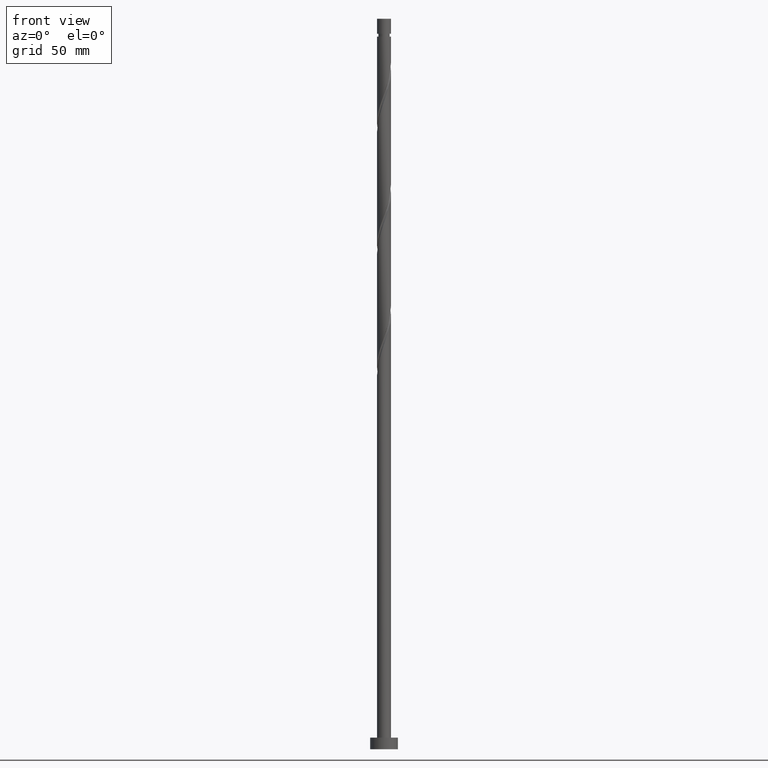
[diagram: clean part render]
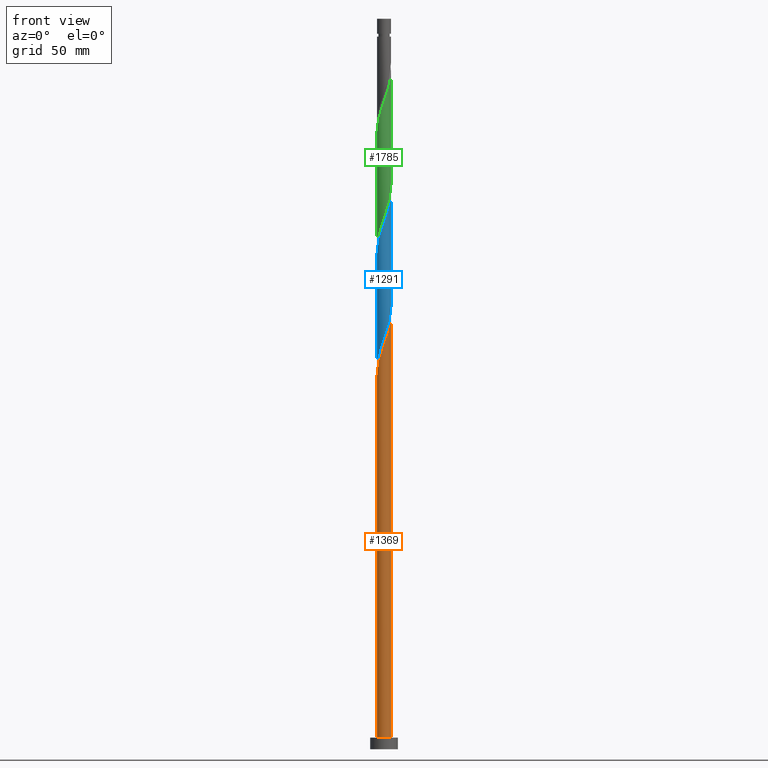
[diagram: same view with three faces highlighted in distinct colors, each labeled with its STEP entity id]
A machine part, front view with three faces highlighted in distinct colors.
Their STEP definitions:

[orange] entity #1369 — the highlighted cylindrical surface (edge-blend (fillet) strip) has radius 3 mm, axis along (-0, -0, -1).
#17 = EDGE_LOOP ( 'NONE', ( #117, #1162, #1628, #1752 ) ) ;
#66 = CARTESIAN_POINT ( 'NONE',  ( -2.185491920847153935, -2.082758216016311614, 167.6483618803024456 ) ) ;
#84 = CARTESIAN_POINT ( 'NONE',  ( -1.926365846447887664, -2.299807519258761701, 168.5858618803024171 ) ) ;
#95 = LINE ( 'NONE', #1820, #662 ) ;
#112 = CARTESIAN_POINT ( 'NONE',  ( 3.000000000000005329, 1.074655693549865574E-15, 187.5363448023963713 ) ) ;
#117 = ORIENTED_EDGE ( 'NONE', *, *, #494, .F. ) ;
#134 = VERTEX_POINT ( 'NONE', #1786 ) ;
#206 = CARTESIAN_POINT ( 'NONE',  ( 2.299807519258761701, -1.926365846447887664, 181.7108618803024171 ) ) ;
#242 = CARTESIAN_POINT ( 'NONE',  ( -3.000000000000002665, -0.3015113445777758971, 162.1246158813600573 ) ) ;
#345 = CYLINDRICAL_SURFACE ( 'NONE', #907, 3.000000000000000444 ) ;
#366 = CARTESIAN_POINT ( 'NONE',  ( -2.940000000000003944, -0.5969924622639746215, 162.9608618803023887 ) ) ;
#374 = CARTESIAN_POINT ( 'NONE',  ( -0.4101078809741727782, -2.990997868343358235, 173.2733618803023887 ) ) ;
#487 = CARTESIAN_POINT ( 'NONE',  ( -3.000000000000000444, 0.000000000000000000, 5.000000000000000000 ) ) ;
#494 = EDGE_CURVE ( 'NONE', #653, #867, #95, .T. ) ;
#499 = CARTESIAN_POINT ( 'NONE',  ( -2.733444741546705803, -1.236236160654868188, 164.8358618803023887 ) ) ;
#527 = CARTESIAN_POINT ( 'NONE',  ( 1.544221415739434722, -2.594154378914896864, 178.8983618803024456 ) ) ;
#539 = VERTEX_POINT ( 'NONE', #487 ) ;
#571 = CARTESIAN_POINT ( 'NONE',  ( 0.000000000000000000, 0.000000000000000000, 5.000000000000000000 ) ) ;
#575 = CARTESIAN_POINT ( 'NONE',  ( -3.000000000000000444, 0.000000000000000000, 315.0000000000000000 ) ) ;
#653 = VERTEX_POINT ( 'NONE', #691 ) ;
#662 = VECTOR ( 'NONE', #792, 1000.000000000000000 ) ;
#686 = CARTESIAN_POINT ( 'NONE',  ( 2.082758216016311614, -2.185491920847153935, 180.7733618803023887 ) ) ;
#691 = CARTESIAN_POINT ( 'NONE',  ( 3.000000000000005329, 1.074655693549865574E-15, 187.5363448023963713 ) ) ;
#792 = DIRECTION ( 'NONE',  ( -0.000000000000000000, -0.000000000000000000, -1.000000000000000000 ) ) ;
#803 = CARTESIAN_POINT ( 'NONE',  ( 2.990997868343357791, -0.4101078809741728892, 186.3983618803024171 ) ) ;
#824 = CARTESIAN_POINT ( 'NONE',  ( 0.9282509055703016543, -2.872735104178516075, 177.0233618803024740 ) ) ;
#840 = CARTESIAN_POINT ( 'NONE',  ( -1.366312515670596417, -2.670803270464134016, 170.4608618803024171 ) ) ;
#867 = VERTEX_POINT ( 'NONE', #903 ) ;
#903 = CARTESIAN_POINT ( 'NONE',  ( 3.000000000000000444, 3.673940397442060361E-16, 5.000000000000000000 ) ) ;
#907 = AXIS2_PLACEMENT_3D ( 'NONE', #1236, #1823, #1042 ) ;
#966 = CARTESIAN_POINT ( 'NONE',  ( -0.7377465701333721926, -2.907873793385206351, 172.3358618803023603 ) ) ;
#982 = EDGE_CURVE ( 'NONE', #134, #539, #1895, .T. ) ;
#984 = CARTESIAN_POINT ( 'NONE',  ( -1.065385259292571662, -2.824749718427057577, 171.3983618803024456 ) ) ;
#1042 = DIRECTION ( 'NONE',  ( -1.000000000000000000, 0.000000000000000000, 0.000000000000000000 ) ) ;
#1054 =( BOUNDED_CURVE ( )  B_SPLINE_CURVE ( 2, ( #1128, #242, #366, #1255, #499, #1394, #1410, #66, #84, #1111, #840, #984, #966, #374, #1418, #1841, #1549, #824, #1403, #527, #1704, #686, #206, #1270, #1860, #1712, #1674, #803, #1387, #1428, #112 ),
 .UNSPECIFIED., .F., .T. ) 
 B_SPLINE_CURVE_WITH_KNOTS ( ( 3, 2, 2, 2, 2, 2, 2, 2, 2, 2, 2, 2, 2, 2, 2, 3 ),
 ( 0.05453034012992235419, 0.06250000000000000000, 0.07142857142857139685, 0.08035714285714290472, 0.08928571428571430157, 0.09821428571428569843, 0.1071428571428570953, 0.1160714285714286031, 0.1250000000000000000, 0.1339285714285713969, 0.1428571428571429047, 0.1517857142857143016, 0.1607142857142856984, 0.1696428571428570953, 0.1785714285714286031, 0.1795303401299222223 ),
 .UNSPECIFIED. ) 
 CURVE ( )  GEOMETRIC_REPRESENTATION_ITEM ( )  RATIONAL_B_SPLINE_CURVE ( ( 0.9079949616362184006, 0.9039886423360818934, 0.9090909090909486956, 0.9033747362666234570, 0.9090909090909486956, 0.9033747362666234570, 0.9090909090909486956, 0.9033747362666234570, 0.9090909090909486956, 0.9033747362666234570, 0.9090909090909486956, 0.9033747362666234570, 0.9090909090909486956, 0.9033747362666234570, 0.9090909090909486956, 0.9033747362666234570, 0.9090909090909486956, 0.9033747362666234570, 0.9090909090909486956, 0.9033747362666234570, 0.9090909090909486956, 0.9033747362666234570, 0.9090909090909486956, 0.9033747362666234570, 0.9090909090909486956, 0.9033747362666234570, 0.9090909090909486956, 0.9033747362666234570, 0.9090909090909486956, 0.9084770030214903702, 0.9079949616362186227 ) ) 
 REPRESENTATION_ITEM ( '' )  );
#1111 = CARTESIAN_POINT ( 'NONE',  ( -1.667239772048622060, -2.516856822501212232, 169.5233618803023887 ) ) ;
#1128 = CARTESIAN_POINT ( 'NONE',  ( -3.000000000000005329, -1.432874258066487300E-15, 161.2863448023963713 ) ) ;
#1136 = EDGE_CURVE ( 'NONE', #539, #867, #1186, .T. ) ;
#1162 = ORIENTED_EDGE ( 'NONE', *, *, #1684, .F. ) ;
#1186 = CIRCLE ( 'NONE', #1766, 3.000000000000000444 ) ;
#1236 = CARTESIAN_POINT ( 'NONE',  ( 0.000000000000000000, 0.000000000000000000, 315.0000000000000000 ) ) ;
#1255 = CARTESIAN_POINT ( 'NONE',  ( -2.872735104178516075, -0.9282509055703017653, 163.8983618803024456 ) ) ;
#1270 = CARTESIAN_POINT ( 'NONE',  ( 2.516856822501212232, -1.667239772048622504, 182.6483618803024456 ) ) ;
#1330 = DIRECTION ( 'NONE',  ( 0.000000000000000000, 0.000000000000000000, 1.000000000000000000 ) ) ;
#1369 = ADVANCED_FACE ( 'NONE', ( #1664 ), #345, .T. ) ;
#1387 = CARTESIAN_POINT ( 'NONE',  ( 2.999131382082425468, -0.07218693100826267806, 187.3358618803023887 ) ) ;
#1394 = CARTESIAN_POINT ( 'NONE',  ( -2.594154378914896864, -1.544221415739434944, 165.7733618803023887 ) ) ;
#1403 = CARTESIAN_POINT ( 'NONE',  ( 1.236236160654867966, -2.733444741546705803, 177.9608618803024171 ) ) ;
#1410 = CARTESIAN_POINT ( 'NONE',  ( -2.389823149881024289, -1.813489815877873168, 166.7108618803023887 ) ) ;
#1418 = CARTESIAN_POINT ( 'NONE',  ( -0.07218693100826246989, -2.999131382082425468, 174.2108618803024171 ) ) ;
#1428 = CARTESIAN_POINT ( 'NONE',  ( 3.000000000000004441, -0.03609869149916513503, 187.4359821141712530 ) ) ;
#1549 = CARTESIAN_POINT ( 'NONE',  ( 0.5969924622639746215, -2.940000000000003944, 176.0858618803023887 ) ) ;
#1579 = VECTOR ( 'NONE', #1746, 1000.000000000000000 ) ;
#1628 = ORIENTED_EDGE ( 'NONE', *, *, #982, .T. ) ;
#1664 = FACE_OUTER_BOUND ( 'NONE', #17, .T. ) ;
#1674 = CARTESIAN_POINT ( 'NONE',  ( 2.907873793385206351, -0.7377465701333721926, 185.4608618803023603 ) ) ;
#1684 = EDGE_CURVE ( 'NONE', #134, #653, #1054, .T. ) ;
#1704 = CARTESIAN_POINT ( 'NONE',  ( 1.813489815877873168, -2.389823149881024733, 179.8358618803024740 ) ) ;
#1712 = CARTESIAN_POINT ( 'NONE',  ( 2.824749718427057577, -1.065385259292571662, 184.5233618803024171 ) ) ;
#1746 = DIRECTION ( 'NONE',  ( -0.000000000000000000, -0.000000000000000000, -1.000000000000000000 ) ) ;
#1752 = ORIENTED_EDGE ( 'NONE', *, *, #1136, .T. ) ;
#1766 = AXIS2_PLACEMENT_3D ( 'NONE', #571, #1330, #1900 ) ;
#1786 = CARTESIAN_POINT ( 'NONE',  ( -3.000000000000005329, -1.432874258066487300E-15, 161.2863448023963997 ) ) ;
#1820 = CARTESIAN_POINT ( 'NONE',  ( 3.000000000000000444, 3.673940397442060361E-16, 315.0000000000000000 ) ) ;
#1823 = DIRECTION ( 'NONE',  ( -0.000000000000000000, -0.000000000000000000, -1.000000000000000000 ) ) ;
#1841 = CARTESIAN_POINT ( 'NONE',  ( 0.2657340189576475331, -3.007264895821492701, 175.1483618803024171 ) ) ;
#1860 = CARTESIAN_POINT ( 'NONE',  ( 2.670803270464134016, -1.366312515670596861, 183.5858618803023887 ) ) ;
#1895 = LINE ( 'NONE', #575, #1579 ) ;
#1900 = DIRECTION ( 'NONE',  ( 1.000000000000000000, 0.000000000000000000, 0.000000000000000000 ) ) ;

[blue] entity #1291 — the highlighted cylindrical surface (edge-blend (fillet) strip) has radius 3 mm, axis along (-0, -0, -1).
#43 = CYLINDRICAL_SURFACE ( 'NONE', #316, 3.000000000000000444 ) ;
#51 =( BOUNDED_CURVE ( )  B_SPLINE_CURVE ( 2, ( #1012, #1757, #1738, #142, #434, #1173, #743, #1046, #1029, #1592, #875, #593, #1625, #1616, #895, #152, #1306, #1334, #604, #1193, #1778, #456, #109, #304, #708, #415, #120, #1293, #1882, #563, #266 ),
 .UNSPECIFIED., .F., .T. ) 
 B_SPLINE_CURVE_WITH_KNOTS ( ( 3, 2, 2, 2, 2, 2, 2, 2, 2, 2, 2, 2, 2, 2, 2, 3 ),
 ( 0.3045303401299221391, 0.3125000000000000000, 0.3214285714285713969, 0.3303571428571429047, 0.3392857142857143016, 0.3482142857142856984, 0.3571428571428570953, 0.3660714285714286031, 0.3750000000000000000, 0.3839285714285713969, 0.3928571428571429047, 0.4017857142857143016, 0.4107142857142856984, 0.4196428571428570953, 0.4285714285714286031, 0.4295303401299221946 ),
 .UNSPECIFIED. ) 
 CURVE ( )  GEOMETRIC_REPRESENTATION_ITEM ( )  RATIONAL_B_SPLINE_CURVE ( ( 0.9079949616362186227, 0.9039886423360817824, 0.9090909090909486956, 0.9033747362666234570, 0.9090909090909486956, 0.9033747362666234570, 0.9090909090909486956, 0.9033747362666234570, 0.9090909090909486956, 0.9033747362666234570, 0.9090909090909486956, 0.9033747362666234570, 0.9090909090909486956, 0.9033747362666234570, 0.9090909090909486956, 0.9033747362666234570, 0.9090909090909486956, 0.9033747362666234570, 0.9090909090909486956, 0.9033747362666234570, 0.9090909090909486956, 0.9033747362666234570, 0.9090909090909486956, 0.9033747362666234570, 0.9090909090909486956, 0.9033747362666234570, 0.9090909090909486956, 0.9033747362666234570, 0.9090909090909486956, 0.9084770030214903702, 0.9079949616362186227 ) ) 
 REPRESENTATION_ITEM ( '' )  );
#103 = CARTESIAN_POINT ( 'NONE',  ( 2.999999999999999112, -2.597084592745524230E-15, 190.8853789582084062 ) ) ;
#109 = CARTESIAN_POINT ( 'NONE',  ( 2.299807519258761701, -1.926365846447887664, 234.2108618803024171 ) ) ;
#120 = CARTESIAN_POINT ( 'NONE',  ( 2.907873793385206351, -0.7377465701333721926, 237.9608618803023887 ) ) ;
#123 = CARTESIAN_POINT ( 'NONE',  ( 0.4101078809741707243, -2.990997868343353350, 178.8983618803023887 ) ) ;
#136 = CARTESIAN_POINT ( 'NONE',  ( -1.236236160654866856, -2.733444741546700030, 174.2108618803023603 ) ) ;
#142 = CARTESIAN_POINT ( 'NONE',  ( -2.872735104178516075, -0.9282509055703017653, 216.3983618803024456 ) ) ;
#152 = CARTESIAN_POINT ( 'NONE',  ( 0.2657340189576475331, -3.007264895821492701, 227.6483618803024456 ) ) ;
#266 = CARTESIAN_POINT ( 'NONE',  ( 3.000000000000005329, 1.074655693549865574E-15, 240.0363448023963429 ) ) ;
#269 = CARTESIAN_POINT ( 'NONE',  ( 1.667239772048618729, -2.516856822501207347, 182.6483618803023887 ) ) ;
#304 = CARTESIAN_POINT ( 'NONE',  ( 2.516856822501212232, -1.667239772048622504, 235.1483618803023887 ) ) ;
#311 = EDGE_CURVE ( 'NONE', #1632, #403, #1697, .T. ) ;
#316 = AXIS2_PLACEMENT_3D ( 'NONE', #1806, #1519, #1207 ) ;
#403 = VERTEX_POINT ( 'NONE', #1103 ) ;
#415 = CARTESIAN_POINT ( 'NONE',  ( 2.824749718427057577, -1.065385259292571662, 237.0233618803024171 ) ) ;
#434 = CARTESIAN_POINT ( 'NONE',  ( -2.733444741546705803, -1.236236160654868188, 217.3358618803024456 ) ) ;
#456 = CARTESIAN_POINT ( 'NONE',  ( 2.082758216016311614, -2.185491920847153935, 233.2733618803024171 ) ) ;
#470 = ORIENTED_EDGE ( 'NONE', *, *, #939, .F. ) ;
#486 = ORIENTED_EDGE ( 'NONE', *, *, #1883, .F. ) ;
#533 =( BOUNDED_CURVE ( )  B_SPLINE_CURVE ( 2, ( #103, #1868, #1285, #857, #1147, #1023, #1438, #1167, #1885, #269, #994, #722, #869, #123, #1897, #889, #1309, #1456, #136, #733, #1465, #1319, #1907, #586, #1175, #1759, #1032, #1611, #746, #546, #1139 ),
 .UNSPECIFIED., .F., .T. ) 
 B_SPLINE_CURVE_WITH_KNOTS ( ( 3, 2, 2, 2, 2, 2, 2, 2, 2, 2, 2, 2, 2, 2, 2, 3 ),
 ( 0.8045303401299223056, 0.8125000000000000000, 0.8214285714285713969, 0.8303571428571429047, 0.8392857142857143016, 0.8482142857142856984, 0.8571428571428570953, 0.8660714285714286031, 0.8750000000000000000, 0.8839285714285713969, 0.8928571428571429047, 0.9017857142857143016, 0.9107142857142856984, 0.9196428571428570953, 0.9285714285714286031, 0.9295303401299221946 ),
 .UNSPECIFIED. ) 
 CURVE ( )  GEOMETRIC_REPRESENTATION_ITEM ( )  RATIONAL_B_SPLINE_CURVE ( ( 0.9079949616362125164, 0.9039886423360760093, 0.9090909090909428114, 0.9033747362666175729, 0.9090909090909428114, 0.9033747362666175729, 0.9090909090909428114, 0.9033747362666175729, 0.9090909090909428114, 0.9033747362666175729, 0.9090909090909428114, 0.9033747362666175729, 0.9090909090909428114, 0.9033747362666175729, 0.9090909090909428114, 0.9033747362666175729, 0.9090909090909428114, 0.9033747362666175729, 0.9090909090909428114, 0.9033747362666175729, 0.9090909090909428114, 0.9033747362666175729, 0.9090909090909428114, 0.9033747362666175729, 0.9090909090909428114, 0.9033747362666175729, 0.9090909090909428114, 0.9033747362666175729, 0.9090909090909428114, 0.9084770030214844860, 0.9079949616362127385 ) ) 
 REPRESENTATION_ITEM ( '' )  );
#546 = CARTESIAN_POINT ( 'NONE',  ( -2.999999999999998668, -0.03609869149916502401, 164.7357416464334676 ) ) ;
#563 = CARTESIAN_POINT ( 'NONE',  ( 3.000000000000004441, -0.03609869149916618281, 239.9359821141712530 ) ) ;
#586 = CARTESIAN_POINT ( 'NONE',  ( -2.516856822501207347, -1.667239772048618729, 169.5233618803023603 ) ) ;
#593 = CARTESIAN_POINT ( 'NONE',  ( -1.065385259292571662, -2.824749718427057577, 223.8983618803024171 ) ) ;
#604 = CARTESIAN_POINT ( 'NONE',  ( 1.236236160654867966, -2.733444741546705803, 230.4608618803024171 ) ) ;
#643 = VERTEX_POINT ( 'NONE', #1494 ) ;
#695 = CARTESIAN_POINT ( 'NONE',  ( -3.000000000000005773, 6.921827470607638618E-15, 213.7863448023963429 ) ) ;
#708 = CARTESIAN_POINT ( 'NONE',  ( 2.670803270464134016, -1.366312515670596861, 236.0858618803024171 ) ) ;
#722 = CARTESIAN_POINT ( 'NONE',  ( 1.065385259292568554, -2.824749718427051803, 180.7733618803023603 ) ) ;
#733 = CARTESIAN_POINT ( 'NONE',  ( -1.544221415739433390, -2.594154378914891979, 173.2733618803023603 ) ) ;
#743 = CARTESIAN_POINT ( 'NONE',  ( -2.389823149881024289, -1.813489815877873168, 219.2108618803023603 ) ) ;
#746 = CARTESIAN_POINT ( 'NONE',  ( -2.999131382082419695, -0.07218693100826148457, 164.8358618803023887 ) ) ;
#833 = CARTESIAN_POINT ( 'NONE',  ( -3.000000000000000444, 0.000000000000000000, 315.0000000000000000 ) ) ;
#857 = CARTESIAN_POINT ( 'NONE',  ( 2.872735104178510745, -0.9282509055703014322, 188.2733618803023319 ) ) ;
#869 = CARTESIAN_POINT ( 'NONE',  ( 0.7377465701333697501, -2.907873793385202355, 179.8358618803023887 ) ) ;
#875 = CARTESIAN_POINT ( 'NONE',  ( -1.366312515670596417, -2.670803270464134016, 222.9608618803024171 ) ) ;
#889 = CARTESIAN_POINT ( 'NONE',  ( -0.2657340189576483658, -3.007264895821487372, 177.0233618803024171 ) ) ;
#895 = CARTESIAN_POINT ( 'NONE',  ( -0.07218693100826246989, -2.999131382082425468, 226.7108618803024171 ) ) ;
#939 = EDGE_CURVE ( 'NONE', #1632, #1346, #51, .T. ) ;
#958 = VECTOR ( 'NONE', #1706, 1000.000000000000000 ) ;
#994 = CARTESIAN_POINT ( 'NONE',  ( 1.366312515670593308, -2.670803270464130019, 181.7108618803023887 ) ) ;
#1012 = CARTESIAN_POINT ( 'NONE',  ( -3.000000000000005773, 6.921827470607638618E-15, 213.7863448023963429 ) ) ;
#1023 = CARTESIAN_POINT ( 'NONE',  ( 2.594154378914891534, -1.544221415739433390, 186.3983618803023887 ) ) ;
#1029 = CARTESIAN_POINT ( 'NONE',  ( -1.926365846447887664, -2.299807519258761701, 221.0858618803024171 ) ) ;
#1032 = CARTESIAN_POINT ( 'NONE',  ( -2.907873793385202799, -0.7377465701333697501, 166.7108618803023887 ) ) ;
#1035 = ORIENTED_EDGE ( 'NONE', *, *, #1679, .F. ) ;
#1046 = CARTESIAN_POINT ( 'NONE',  ( -2.185491920847153935, -2.082758216016311614, 220.1483618803024456 ) ) ;
#1103 = CARTESIAN_POINT ( 'NONE',  ( -2.999999999999999112, 1.054879043633850358E-14, 164.6353789582084062 ) ) ;
#1139 = CARTESIAN_POINT ( 'NONE',  ( -2.999999999999999112, 1.054879043633850201E-14, 164.6353789582084062 ) ) ;
#1147 = CARTESIAN_POINT ( 'NONE',  ( 2.733444741546700030, -1.236236160654866856, 187.3358618803023603 ) ) ;
#1167 = CARTESIAN_POINT ( 'NONE',  ( 2.185491920847150382, -2.082758216016309838, 184.5233618803023603 ) ) ;
#1173 = CARTESIAN_POINT ( 'NONE',  ( -2.594154378914896864, -1.544221415739434944, 218.2733618803024171 ) ) ;
#1175 = CARTESIAN_POINT ( 'NONE',  ( -2.670803270464130019, -1.366312515670593308, 168.5858618803024171 ) ) ;
#1193 = CARTESIAN_POINT ( 'NONE',  ( 1.544221415739434722, -2.594154378914896864, 231.3983618803025024 ) ) ;
#1207 = DIRECTION ( 'NONE',  ( -1.000000000000000000, 0.000000000000000000, 0.000000000000000000 ) ) ;
#1277 = LINE ( 'NONE', #1851, #1890 ) ;
#1285 = CARTESIAN_POINT ( 'NONE',  ( 2.939999999999999503, -0.5969924622639747325, 189.2108618803023603 ) ) ;
#1291 = ADVANCED_FACE ( 'NONE', ( #1378 ), #43, .T. ) ;
#1293 = CARTESIAN_POINT ( 'NONE',  ( 2.990997868343357791, -0.4101078809741728892, 238.8983618803024456 ) ) ;
#1306 = CARTESIAN_POINT ( 'NONE',  ( 0.5969924622639746215, -2.940000000000003944, 228.5858618803023887 ) ) ;
#1309 = CARTESIAN_POINT ( 'NONE',  ( -0.5969924622639745104, -2.939999999999999503, 176.0858618803023603 ) ) ;
#1319 = CARTESIAN_POINT ( 'NONE',  ( -2.082758216016309838, -2.185491920847150382, 171.3983618803023887 ) ) ;
#1334 = CARTESIAN_POINT ( 'NONE',  ( 0.9282509055703016543, -2.872735104178516075, 229.5233618803024456 ) ) ;
#1338 = ORIENTED_EDGE ( 'NONE', *, *, #311, .T. ) ;
#1346 = VERTEX_POINT ( 'NONE', #1510 ) ;
#1378 = FACE_OUTER_BOUND ( 'NONE', #1846, .T. ) ;
#1438 = CARTESIAN_POINT ( 'NONE',  ( 2.389823149881020292, -1.813489815877871614, 185.4608618803023319 ) ) ;
#1456 = CARTESIAN_POINT ( 'NONE',  ( -0.9282509055703012102, -2.872735104178510745, 175.1483618803023887 ) ) ;
#1465 = CARTESIAN_POINT ( 'NONE',  ( -1.813489815877871614, -2.389823149881020292, 172.3358618803023035 ) ) ;
#1494 = CARTESIAN_POINT ( 'NONE',  ( 2.999999999999999112, -2.597084592745524230E-15, 190.8853789582084062 ) ) ;
#1510 = CARTESIAN_POINT ( 'NONE',  ( 3.000000000000005329, 1.074655693549865574E-15, 240.0363448023963429 ) ) ;
#1519 = DIRECTION ( 'NONE',  ( -0.000000000000000000, -0.000000000000000000, -1.000000000000000000 ) ) ;
#1566 = DIRECTION ( 'NONE',  ( -0.000000000000000000, -0.000000000000000000, -1.000000000000000000 ) ) ;
#1592 = CARTESIAN_POINT ( 'NONE',  ( -1.667239772048622060, -2.516856822501212232, 222.0233618803024171 ) ) ;
#1611 = CARTESIAN_POINT ( 'NONE',  ( -2.990997868343353350, -0.4101078809741708908, 165.7733618803023603 ) ) ;
#1616 = CARTESIAN_POINT ( 'NONE',  ( -0.4101078809741727782, -2.990997868343358235, 225.7733618803024740 ) ) ;
#1625 = CARTESIAN_POINT ( 'NONE',  ( -0.7377465701333721926, -2.907873793385206351, 224.8358618803024456 ) ) ;
#1632 = VERTEX_POINT ( 'NONE', #695 ) ;
#1679 = EDGE_CURVE ( 'NONE', #1346, #643, #1277, .T. ) ;
#1697 = LINE ( 'NONE', #833, #958 ) ;
#1706 = DIRECTION ( 'NONE',  ( -0.000000000000000000, -0.000000000000000000, -1.000000000000000000 ) ) ;
#1738 = CARTESIAN_POINT ( 'NONE',  ( -2.940000000000003944, -0.5969924622639746215, 215.4608618803024740 ) ) ;
#1757 = CARTESIAN_POINT ( 'NONE',  ( -3.000000000000003997, -0.3015113445777677925, 214.6246158813599436 ) ) ;
#1759 = CARTESIAN_POINT ( 'NONE',  ( -2.824749718427051803, -1.065385259292568554, 167.6483618803023887 ) ) ;
#1778 = CARTESIAN_POINT ( 'NONE',  ( 1.813489815877873168, -2.389823149881024733, 232.3358618803023887 ) ) ;
#1806 = CARTESIAN_POINT ( 'NONE',  ( 0.000000000000000000, 0.000000000000000000, 315.0000000000000000 ) ) ;
#1846 = EDGE_LOOP ( 'NONE', ( #1035, #470, #1338, #486 ) ) ;
#1851 = CARTESIAN_POINT ( 'NONE',  ( 3.000000000000000444, 3.673940397442060361E-16, 315.0000000000000000 ) ) ;
#1868 = CARTESIAN_POINT ( 'NONE',  ( 2.999999999999997335, -0.3015113445777746759, 190.0471078792448338 ) ) ;
#1882 = CARTESIAN_POINT ( 'NONE',  ( 2.999131382082425468, -0.07218693100826267806, 239.8358618803023603 ) ) ;
#1883 = EDGE_CURVE ( 'NONE', #643, #403, #533, .T. ) ;
#1885 = CARTESIAN_POINT ( 'NONE',  ( 1.926365846447884111, -2.299807519258759037, 183.5858618803023887 ) ) ;
#1890 = VECTOR ( 'NONE', #1566, 1000.000000000000000 ) ;
#1897 = CARTESIAN_POINT ( 'NONE',  ( 0.07218693100826124864, -2.999131382082419695, 177.9608618803023887 ) ) ;
#1907 = CARTESIAN_POINT ( 'NONE',  ( -2.299807519258758592, -1.926365846447884111, 170.4608618803023887 ) ) ;

[green] entity #1785 — the highlighted cylindrical surface (edge-blend (fillet) strip) has radius 3 mm, axis along (-0, -0, -1).
#7 = CARTESIAN_POINT ( 'NONE',  ( 2.185491920847150382, -2.082758216016309838, 237.0233618803023887 ) ) ;
#29 = CARTESIAN_POINT ( 'NONE',  ( 0.7377465701333697501, -2.907873793385202355, 232.3358618803023319 ) ) ;
#44 = CARTESIAN_POINT ( 'NONE',  ( -1.366312515670596417, -2.670803270464134016, 275.4608618803025024 ) ) ;
#47 = EDGE_CURVE ( 'NONE', #1655, #476, #1208, .T. ) ;
#54 = CARTESIAN_POINT ( 'NONE',  ( 1.813489815877873168, -2.389823149881024733, 284.8358618803023887 ) ) ;
#68 = CARTESIAN_POINT ( 'NONE',  ( -1.667239772048622060, -2.516856822501212232, 274.5233618803023887 ) ) ;
#85 = CARTESIAN_POINT ( 'NONE',  ( 2.999131382082425468, -0.07218693100826267806, 292.3358618803023887 ) ) ;
#132 =( BOUNDED_CURVE ( )  B_SPLINE_CURVE ( 2, ( #1074, #1043, #300, #1796, #346, #500, #1092, #957, #648, #68, #44, #1539, #1560, #1411, #537, #804, #1256, #1862, #528, #215, #54, #1833, #1520, #1396, #814, #1388, #949, #199, #85, #1248, #1237 ),
 .UNSPECIFIED., .F., .T. ) 
 B_SPLINE_CURVE_WITH_KNOTS ( ( 3, 2, 2, 2, 2, 2, 2, 2, 2, 2, 2, 2, 2, 2, 2, 3 ),
 ( 0.5545303401299220836, 0.5625000000000000000, 0.5714285714285713969, 0.5803571428571427937, 0.5892857142857143016, 0.5982142857142856984, 0.6071428571428572063, 0.6160714285714286031, 0.6250000000000000000, 0.6339285714285713969, 0.6428571428571427937, 0.6517857142857143016, 0.6607142857142856984, 0.6696428571428572063, 0.6785714285714286031, 0.6795303401299220836 ),
 .UNSPECIFIED. ) 
 CURVE ( )  GEOMETRIC_REPRESENTATION_ITEM ( )  RATIONAL_B_SPLINE_CURVE ( ( 0.9079949616362186227, 0.9039886423360817824, 0.9090909090909486956, 0.9033747362666234570, 0.9090909090909486956, 0.9033747362666234570, 0.9090909090909486956, 0.9033747362666234570, 0.9090909090909486956, 0.9033747362666234570, 0.9090909090909486956, 0.9033747362666234570, 0.9090909090909486956, 0.9033747362666234570, 0.9090909090909486956, 0.9033747362666234570, 0.9090909090909486956, 0.9033747362666234570, 0.9090909090909486956, 0.9033747362666234570, 0.9090909090909486956, 0.9033747362666234570, 0.9090909090909486956, 0.9033747362666234570, 0.9090909090909486956, 0.9033747362666234570, 0.9090909090909486956, 0.9033747362666234570, 0.9090909090909486956, 0.9084770030214903702, 0.9079949616362186227 ) ) 
 REPRESENTATION_ITEM ( '' )  );
#145 = DIRECTION ( 'NONE',  ( -1.000000000000000000, 0.000000000000000000, 0.000000000000000000 ) ) ;
#181 = CARTESIAN_POINT ( 'NONE',  ( -2.082758216016309838, -2.185491920847150382, 223.8983618803023887 ) ) ;
#191 = CARTESIAN_POINT ( 'NONE',  ( -2.299807519258758592, -1.926365846447884111, 222.9608618803023887 ) ) ;
#199 = CARTESIAN_POINT ( 'NONE',  ( 2.990997868343357791, -0.4101078809741728892, 291.3983618803025024 ) ) ;
#215 = CARTESIAN_POINT ( 'NONE',  ( 1.544221415739434722, -2.594154378914896864, 283.8983618803025024 ) ) ;
#250 = CARTESIAN_POINT ( 'NONE',  ( 0.000000000000000000, 0.000000000000000000, 315.0000000000000000 ) ) ;
#255 =( BOUNDED_CURVE ( )  B_SPLINE_CURVE ( 2, ( #1601, #340, #933, #944, #1382, #1648, #1058, #7, #1513, #1636, #1818, #1230, #29, #1354, #495, #317, #1678, #914, #652, #923, #1202, #181, #191, #1240, #326, #791, #1523, #1211, #1077, #1789, #780 ),
 .UNSPECIFIED., .F., .T. ) 
 B_SPLINE_CURVE_WITH_KNOTS ( ( 3, 2, 2, 2, 2, 2, 2, 2, 2, 2, 2, 2, 2, 2, 2, 3 ),
 ( 0.5545303401299220836, 0.5625000000000000000, 0.5714285714285713969, 0.5803571428571429047, 0.5892857142857143016, 0.5982142857142856984, 0.6071428571428570953, 0.6160714285714286031, 0.6250000000000000000, 0.6339285714285713969, 0.6428571428571429047, 0.6517857142857143016, 0.6607142857142856984, 0.6696428571428570953, 0.6785714285714286031, 0.6795303401299219725 ),
 .UNSPECIFIED. ) 
 CURVE ( )  GEOMETRIC_REPRESENTATION_ITEM ( )  RATIONAL_B_SPLINE_CURVE ( ( 0.9079949616362129605, 0.9039886423360758982, 0.9090909090909428114, 0.9033747362666175729, 0.9090909090909428114, 0.9033747362666175729, 0.9090909090909428114, 0.9033747362666175729, 0.9090909090909428114, 0.9033747362666175729, 0.9090909090909428114, 0.9033747362666175729, 0.9090909090909428114, 0.9033747362666175729, 0.9090909090909428114, 0.9033747362666175729, 0.9090909090909428114, 0.9033747362666175729, 0.9090909090909428114, 0.9033747362666175729, 0.9090909090909428114, 0.9033747362666175729, 0.9090909090909428114, 0.9033747362666175729, 0.9090909090909428114, 0.9033747362666175729, 0.9090909090909428114, 0.9033747362666175729, 0.9090909090909428114, 0.9084770030214847081, 0.9079949616362130715 ) ) 
 REPRESENTATION_ITEM ( '' )  );
#260 = EDGE_CURVE ( 'NONE', #372, #1655, #132, .T. ) ;
#300 = CARTESIAN_POINT ( 'NONE',  ( -2.940000000000003944, -0.5969924622639746215, 267.9608618803025024 ) ) ;
#312 = CARTESIAN_POINT ( 'NONE',  ( 3.000000000000000444, 3.673940397442060361E-16, 315.0000000000000000 ) ) ;
#317 = CARTESIAN_POINT ( 'NONE',  ( -0.2657340189576483658, -3.007264895821487372, 229.5233618803023887 ) ) ;
#326 = CARTESIAN_POINT ( 'NONE',  ( -2.670803270464130019, -1.366312515670593308, 221.0858618803023319 ) ) ;
#340 = CARTESIAN_POINT ( 'NONE',  ( 2.999999999999999556, -0.3015113445777665158, 242.5471078792448623 ) ) ;
#346 = CARTESIAN_POINT ( 'NONE',  ( -2.733444741546705803, -1.236236160654868188, 269.8358618803024456 ) ) ;
#372 = VERTEX_POINT ( 'NONE', #967 ) ;
#426 = VECTOR ( 'NONE', #900, 1000.000000000000000 ) ;
#476 = VERTEX_POINT ( 'NONE', #1286 ) ;
#495 = CARTESIAN_POINT ( 'NONE',  ( 0.07218693100826124864, -2.999131382082419695, 230.4608618803023603 ) ) ;
#500 = CARTESIAN_POINT ( 'NONE',  ( -2.594154378914896864, -1.544221415739434944, 270.7733618803025024 ) ) ;
#528 = CARTESIAN_POINT ( 'NONE',  ( 1.236236160654867966, -2.733444741546705803, 282.9608618803023319 ) ) ;
#537 = CARTESIAN_POINT ( 'NONE',  ( -0.07218693100826246989, -2.999131382082425468, 279.2108618803023887 ) ) ;
#629 = AXIS2_PLACEMENT_3D ( 'NONE', #250, #1157, #145 ) ;
#648 = CARTESIAN_POINT ( 'NONE',  ( -1.926365846447887664, -2.299807519258761701, 273.5858618803023887 ) ) ;
#652 = CARTESIAN_POINT ( 'NONE',  ( -1.236236160654866856, -2.733444741546700030, 226.7108618803023603 ) ) ;
#658 = DIRECTION ( 'NONE',  ( -0.000000000000000000, -0.000000000000000000, -1.000000000000000000 ) ) ;
#668 = CARTESIAN_POINT ( 'NONE',  ( -3.000000000000000444, 0.000000000000000000, 315.0000000000000000 ) ) ;
#742 = ORIENTED_EDGE ( 'NONE', *, *, #260, .F. ) ;
#780 = CARTESIAN_POINT ( 'NONE',  ( -2.999999999999999112, -6.183001681292145664E-15, 217.1353789582084062 ) ) ;
#791 = CARTESIAN_POINT ( 'NONE',  ( -2.824749718427051803, -1.065385259292568554, 220.1483618803023887 ) ) ;
#804 = CARTESIAN_POINT ( 'NONE',  ( 0.2657340189576475331, -3.007264895821492701, 280.1483618803024456 ) ) ;
#814 = CARTESIAN_POINT ( 'NONE',  ( 2.670803270464134016, -1.366312515670596861, 288.5858618803023887 ) ) ;
#900 = DIRECTION ( 'NONE',  ( -0.000000000000000000, -0.000000000000000000, -1.000000000000000000 ) ) ;
#914 = CARTESIAN_POINT ( 'NONE',  ( -0.9282509055703012102, -2.872735104178510745, 227.6483618803024171 ) ) ;
#923 = CARTESIAN_POINT ( 'NONE',  ( -1.544221415739433390, -2.594154378914891979, 225.7733618803024171 ) ) ;
#933 = CARTESIAN_POINT ( 'NONE',  ( 2.939999999999999503, -0.5969924622639747325, 241.7108618803023887 ) ) ;
#944 = CARTESIAN_POINT ( 'NONE',  ( 2.872735104178510745, -0.9282509055703014322, 240.7733618803024171 ) ) ;
#949 = CARTESIAN_POINT ( 'NONE',  ( 2.907873793385206351, -0.7377465701333721926, 290.4608618803025024 ) ) ;
#957 = CARTESIAN_POINT ( 'NONE',  ( -2.185491920847153935, -2.082758216016311614, 272.6483618803024456 ) ) ;
#967 = CARTESIAN_POINT ( 'NONE',  ( -3.000000000000005329, -9.888324958010912875E-16, 266.2863448023962860 ) ) ;
#991 = EDGE_CURVE ( 'NONE', #476, #1315, #255, .T. ) ;
#1043 = CARTESIAN_POINT ( 'NONE',  ( -3.000000000000003997, -0.3015113445777656831, 267.1246158813599436 ) ) ;
#1058 = CARTESIAN_POINT ( 'NONE',  ( 2.389823149881020292, -1.813489815877871614, 237.9608618803023603 ) ) ;
#1074 = CARTESIAN_POINT ( 'NONE',  ( -3.000000000000005329, -9.888324958010912875E-16, 266.2863448023962860 ) ) ;
#1077 = CARTESIAN_POINT ( 'NONE',  ( -2.999131382082419695, -0.07218693100826148457, 217.3358618803023319 ) ) ;
#1092 = CARTESIAN_POINT ( 'NONE',  ( -2.389823149881024289, -1.813489815877873168, 271.7108618803023887 ) ) ;
#1153 = VECTOR ( 'NONE', #658, 1000.000000000000000 ) ;
#1157 = DIRECTION ( 'NONE',  ( -0.000000000000000000, -0.000000000000000000, -1.000000000000000000 ) ) ;
#1202 = CARTESIAN_POINT ( 'NONE',  ( -1.813489815877871614, -2.389823149881020292, 224.8358618803024171 ) ) ;
#1208 = LINE ( 'NONE', #312, #426 ) ;
#1211 = CARTESIAN_POINT ( 'NONE',  ( -2.990997868343353350, -0.4101078809741708908, 218.2733618803023603 ) ) ;
#1216 = CARTESIAN_POINT ( 'NONE',  ( -2.999999999999999112, -6.183001681292145664E-15, 217.1353789582084062 ) ) ;
#1230 = CARTESIAN_POINT ( 'NONE',  ( 1.065385259292568554, -2.824749718427051803, 233.2733618803023603 ) ) ;
#1237 = CARTESIAN_POINT ( 'NONE',  ( 3.000000000000005329, 6.231510445237065798E-16, 292.5363448023963429 ) ) ;
#1240 = CARTESIAN_POINT ( 'NONE',  ( -2.516856822501207347, -1.667239772048618729, 222.0233618803023887 ) ) ;
#1248 = CARTESIAN_POINT ( 'NONE',  ( 3.000000000000004441, -0.03609869149917035308, 292.4359821141713383 ) ) ;
#1256 = CARTESIAN_POINT ( 'NONE',  ( 0.5969924622639746215, -2.940000000000003944, 281.0858618803025024 ) ) ;
#1286 = CARTESIAN_POINT ( 'NONE',  ( 2.999999999999999112, -2.597084592745524230E-15, 243.3853789582083778 ) ) ;
#1315 = VERTEX_POINT ( 'NONE', #1216 ) ;
#1354 = CARTESIAN_POINT ( 'NONE',  ( 0.4101078809741707243, -2.990997868343353350, 231.3983618803023887 ) ) ;
#1382 = CARTESIAN_POINT ( 'NONE',  ( 2.733444741546700030, -1.236236160654866856, 239.8358618803023887 ) ) ;
#1388 = CARTESIAN_POINT ( 'NONE',  ( 2.824749718427057577, -1.065385259292571662, 289.5233618803023319 ) ) ;
#1396 = CARTESIAN_POINT ( 'NONE',  ( 2.516856822501212232, -1.667239772048622504, 287.6483618803024456 ) ) ;
#1411 = CARTESIAN_POINT ( 'NONE',  ( -0.4101078809741727782, -2.990997868343358235, 278.2733618803024456 ) ) ;
#1488 = EDGE_LOOP ( 'NONE', ( #1894, #742, #1555, #1682 ) ) ;
#1513 = CARTESIAN_POINT ( 'NONE',  ( 1.926365846447884111, -2.299807519258759037, 236.0858618803023887 ) ) ;
#1520 = CARTESIAN_POINT ( 'NONE',  ( 2.299807519258761701, -1.926365846447887664, 286.7108618803023887 ) ) ;
#1523 = CARTESIAN_POINT ( 'NONE',  ( -2.907873793385202799, -0.7377465701333697501, 219.2108618803023603 ) ) ;
#1527 = LINE ( 'NONE', #668, #1153 ) ;
#1539 = CARTESIAN_POINT ( 'NONE',  ( -1.065385259292571662, -2.824749718427057577, 276.3983618803025024 ) ) ;
#1555 = ORIENTED_EDGE ( 'NONE', *, *, #1617, .T. ) ;
#1560 = CARTESIAN_POINT ( 'NONE',  ( -0.7377465701333721926, -2.907873793385206351, 277.3358618803023887 ) ) ;
#1586 = CYLINDRICAL_SURFACE ( 'NONE', #629, 3.000000000000000444 ) ;
#1601 = CARTESIAN_POINT ( 'NONE',  ( 2.999999999999999112, -2.597084592745524230E-15, 243.3853789582083778 ) ) ;
#1617 = EDGE_CURVE ( 'NONE', #372, #1315, #1527, .T. ) ;
#1636 = CARTESIAN_POINT ( 'NONE',  ( 1.667239772048618729, -2.516856822501207347, 235.1483618803023887 ) ) ;
#1648 = CARTESIAN_POINT ( 'NONE',  ( 2.594154378914891534, -1.544221415739433390, 238.8983618803024171 ) ) ;
#1655 = VERTEX_POINT ( 'NONE', #1685 ) ;
#1678 = CARTESIAN_POINT ( 'NONE',  ( -0.5969924622639745104, -2.939999999999999503, 228.5858618803024171 ) ) ;
#1682 = ORIENTED_EDGE ( 'NONE', *, *, #991, .F. ) ;
#1685 = CARTESIAN_POINT ( 'NONE',  ( 3.000000000000005329, 6.231510445237065798E-16, 292.5363448023963429 ) ) ;
#1719 = FACE_OUTER_BOUND ( 'NONE', #1488, .T. ) ;
#1785 = ADVANCED_FACE ( 'NONE', ( #1719 ), #1586, .T. ) ;
#1789 = CARTESIAN_POINT ( 'NONE',  ( -2.999999999999999112, -0.03609869149917337844, 217.2357416464334676 ) ) ;
#1796 = CARTESIAN_POINT ( 'NONE',  ( -2.872735104178516075, -0.9282509055703017653, 268.8983618803023887 ) ) ;
#1818 = CARTESIAN_POINT ( 'NONE',  ( 1.366312515670593308, -2.670803270464130019, 234.2108618803024456 ) ) ;
#1833 = CARTESIAN_POINT ( 'NONE',  ( 2.082758216016311614, -2.185491920847153935, 285.7733618803025024 ) ) ;
#1862 = CARTESIAN_POINT ( 'NONE',  ( 0.9282509055703016543, -2.872735104178516075, 282.0233618803024456 ) ) ;
#1894 = ORIENTED_EDGE ( 'NONE', *, *, #47, .F. ) ;